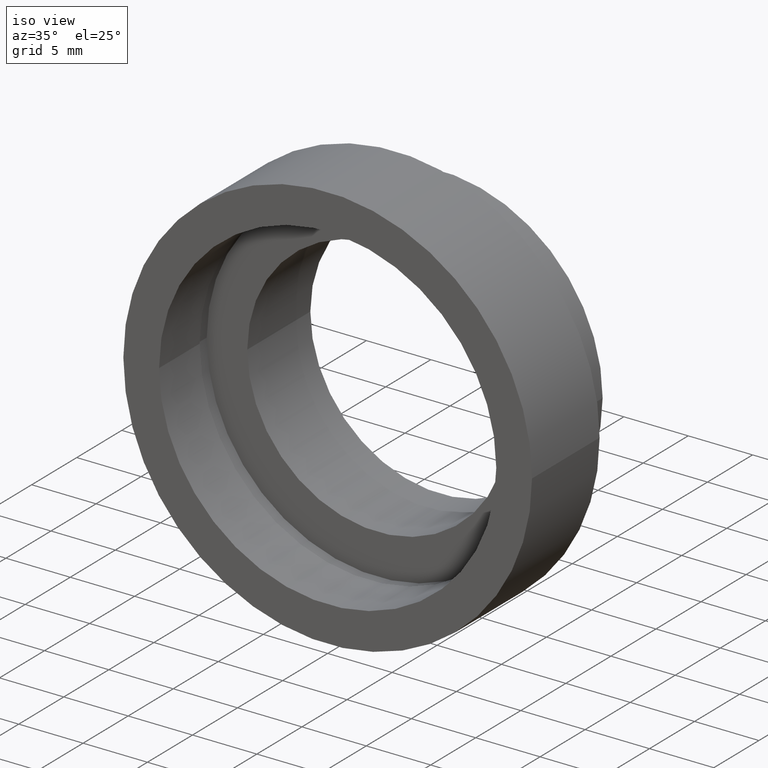
[diagram: clean part render]
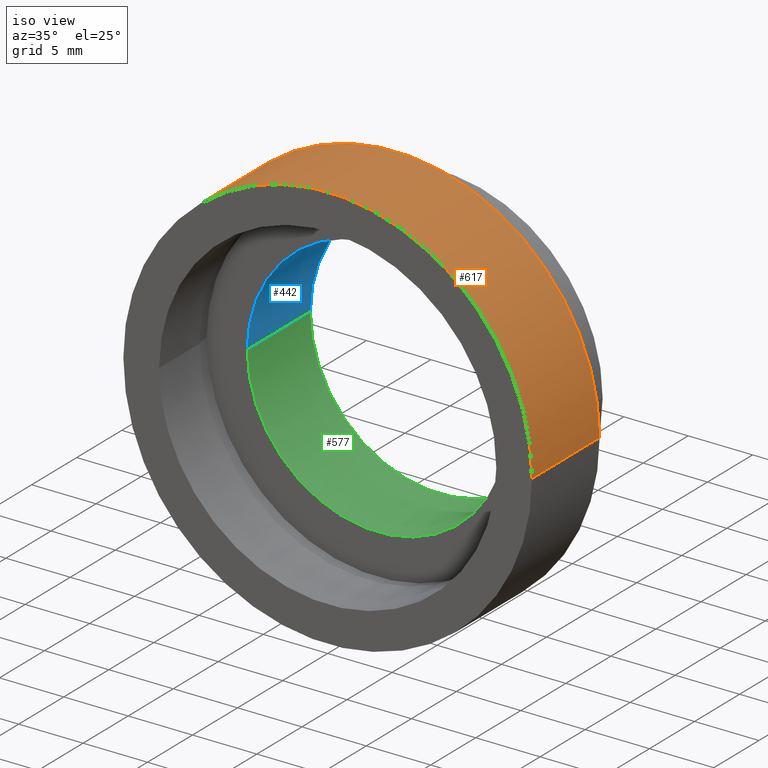
[diagram: same view with three faces highlighted in distinct colors, each labeled with its STEP entity id]
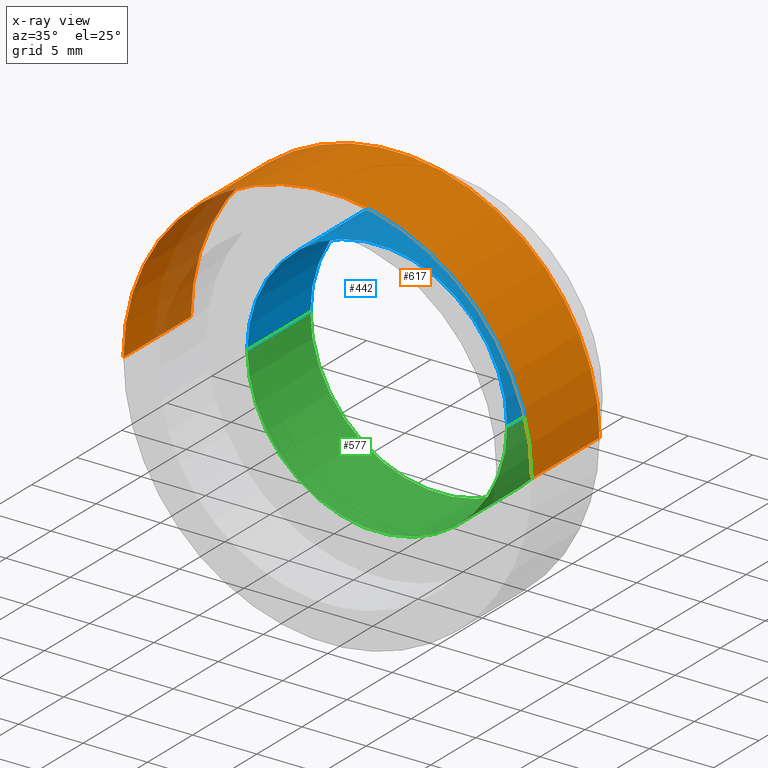
[diagram: x-ray of the same camera — body ghosted, the three highlighted faces saturated]
A machine part, iso view with three faces highlighted in distinct colors.
The next image is the same camera in x-ray (body ghosted, the three faces saturated) — at least one of them is partly hidden behind the body in this view.
Their STEP definitions:

[orange] entity #617 — the highlighted cylindrical surface (partial cylindrical patch) has radius 15.875 mm, axis along (-0, 1, -0).
#7 = CARTESIAN_POINT ( 'NONE',  ( 1.149455719078122700E-015, 7.499999999999998200, 0.0000000000000000000 ) ) ;
#51 = EDGE_CURVE ( 'NONE', #460, #482, #592, .T. ) ;
#57 = AXIS2_PLACEMENT_3D ( 'NONE', #201, #495, #390 ) ;
#108 = CARTESIAN_POINT ( 'NONE',  ( 15.87500000000000000, -1.525320158307194900E-015, 1.944126793646423200E-015 ) ) ;
#112 = VERTEX_POINT ( 'NONE', #343 ) ;
#113 = DIRECTION ( 'NONE',  ( -1.000000000000000000, -2.185478394931410600E-016, 0.0000000000000000000 ) ) ;
#150 = DIRECTION ( 'NONE',  ( -1.000000000000000000, -1.092739197465705300E-016, 0.0000000000000000000 ) ) ;
#163 = AXIS2_PLACEMENT_3D ( 'NONE', #508, #507, #113 ) ;
#181 = LINE ( 'NONE', #266, #359 ) ;
#201 = CARTESIAN_POINT ( 'NONE',  ( 2.067940818438636500E-015, -3.469446951953614200E-015, 0.0000000000000000000 ) ) ;
#266 = CARTESIAN_POINT ( 'NONE',  ( -15.87500000000000000, 16.88601823708207300, 0.0000000000000000000 ) ) ;
#276 = CYLINDRICAL_SURFACE ( 'NONE', #163, 15.87500000000000000 ) ;
#290 = ORIENTED_EDGE ( 'NONE', *, *, #470, .F. ) ;
#313 = CARTESIAN_POINT ( 'NONE',  ( -15.87500000000000000, 7.499999999999996400, 0.0000000000000000000 ) ) ;
#343 = CARTESIAN_POINT ( 'NONE',  ( -15.87499999999999300, -5.413573745600033100E-015, 0.0000000000000000000 ) ) ;
#347 = EDGE_CURVE ( 'NONE', #537, #482, #524, .T. ) ;
#357 = DIRECTION ( 'NONE',  ( -1.224646799147351000E-016, 1.000000000000000000, -0.0000000000000000000 ) ) ;
#359 = VECTOR ( 'NONE', #357, 1000.000000000000000 ) ;
#367 = EDGE_LOOP ( 'NONE', ( #612, #528, #595, #290 ) ) ;
#377 = EDGE_CURVE ( 'NONE', #112, #460, #561, .T. ) ;
#390 = DIRECTION ( 'NONE',  ( -1.000000000000000000, -1.224646799147350700E-016, 0.0000000000000000000 ) ) ;
#433 = CARTESIAN_POINT ( 'NONE',  ( 15.87500000000000000, 16.88601823708208000, 1.944126793646423200E-015 ) ) ;
#460 = VERTEX_POINT ( 'NONE', #108 ) ;
#470 = EDGE_CURVE ( 'NONE', #112, #537, #181, .T. ) ;
#482 = VERTEX_POINT ( 'NONE', #594 ) ;
#488 = DIRECTION ( 'NONE',  ( -1.224646799147351000E-016, 1.000000000000000000, -0.0000000000000000000 ) ) ;
#495 = DIRECTION ( 'NONE',  ( -1.224646799147351000E-016, 1.000000000000000000, -0.0000000000000000000 ) ) ;
#507 = DIRECTION ( 'NONE',  ( -1.224646799147351000E-016, 1.000000000000000000, -0.0000000000000000000 ) ) ;
#508 = CARTESIAN_POINT ( 'NONE',  ( 0.0000000000000000000, 16.88601823708207700, 0.0000000000000000000 ) ) ;
#519 = DIRECTION ( 'NONE',  ( -1.224646799147351000E-016, 1.000000000000000000, -0.0000000000000000000 ) ) ;
#524 = CIRCLE ( 'NONE', #622, 15.87500000000000000 ) ;
#528 = ORIENTED_EDGE ( 'NONE', *, *, #51, .T. ) ;
#537 = VERTEX_POINT ( 'NONE', #313 ) ;
#559 = FACE_OUTER_BOUND ( 'NONE', #367, .T. ) ;
#561 = CIRCLE ( 'NONE', #57, 15.87499999999999600 ) ;
#584 = VECTOR ( 'NONE', #519, 1000.000000000000000 ) ;
#592 = LINE ( 'NONE', #433, #584 ) ;
#594 = CARTESIAN_POINT ( 'NONE',  ( 15.87500000000000000, 7.500000000000000000, 1.944126793646423200E-015 ) ) ;
#595 = ORIENTED_EDGE ( 'NONE', *, *, #347, .F. ) ;
#612 = ORIENTED_EDGE ( 'NONE', *, *, #377, .T. ) ;
#617 = ADVANCED_FACE ( 'NONE', ( #559 ), #276, .T. ) ;
#622 = AXIS2_PLACEMENT_3D ( 'NONE', #7, #488, #150 ) ;

[blue] entity #442 — the highlighted cylindrical surface (partial cylindrical patch) has radius 10.1 mm, axis along (-0, 1, -0).
#11 = DIRECTION ( 'NONE',  ( -1.224646799147351000E-016, 1.000000000000000000, -0.0000000000000000000 ) ) ;
#19 = VERTEX_POINT ( 'NONE', #332 ) ;
#36 = CARTESIAN_POINT ( 'NONE',  ( 1.394385078907593200E-015, 5.499999999999996400, 0.0000000000000000000 ) ) ;
#50 = AXIS2_PLACEMENT_3D ( 'NONE', #550, #264, #406 ) ;
#52 = DIRECTION ( 'NONE',  ( -1.000000000000000000, -1.717547996016640700E-016, 0.0000000000000000000 ) ) ;
#58 = CARTESIAN_POINT ( 'NONE',  ( 5.371323195044473300E-016, 12.49999999999999600, 0.0000000000000000000 ) ) ;
#64 = EDGE_CURVE ( 'NONE', #512, #19, #69, .T. ) ;
#69 = CIRCLE ( 'NONE', #82, 10.10000000000000000 ) ;
#82 = AXIS2_PLACEMENT_3D ( 'NONE', #36, #288, #384 ) ;
#90 = CARTESIAN_POINT ( 'NONE',  ( -10.10000000000000000, 16.88601823708207700, 0.0000000000000000000 ) ) ;
#95 = LINE ( 'NONE', #90, #101 ) ;
#96 = CARTESIAN_POINT ( 'NONE',  ( -10.10000000000000000, 12.49999999999999500, 0.0000000000000000000 ) ) ;
#101 = VECTOR ( 'NONE', #250, 1000.000000000000000 ) ;
#152 = EDGE_CURVE ( 'NONE', #512, #183, #95, .T. ) ;
#161 = VERTEX_POINT ( 'NONE', #578 ) ;
#183 = VERTEX_POINT ( 'NONE', #96 ) ;
#243 = CIRCLE ( 'NONE', #362, 10.10000000000000000 ) ;
#250 = DIRECTION ( 'NONE',  ( -1.224646799147351000E-016, 1.000000000000000000, -0.0000000000000000000 ) ) ;
#260 = DIRECTION ( 'NONE',  ( -1.224646799147351000E-016, 1.000000000000000000, -0.0000000000000000000 ) ) ;
#264 = DIRECTION ( 'NONE',  ( -1.224646799147351000E-016, 1.000000000000000000, -0.0000000000000000000 ) ) ;
#278 = EDGE_CURVE ( 'NONE', #19, #161, #407, .T. ) ;
#279 = VECTOR ( 'NONE', #11, 1000.000000000000000 ) ;
#286 = ORIENTED_EDGE ( 'NONE', *, *, #421, .T. ) ;
#288 = DIRECTION ( 'NONE',  ( -1.224646799147351000E-016, 1.000000000000000000, -0.0000000000000000000 ) ) ;
#300 = CARTESIAN_POINT ( 'NONE',  ( 10.10000000000000000, 16.88601823708207700, 1.236893267138826600E-015 ) ) ;
#305 = CYLINDRICAL_SURFACE ( 'NONE', #50, 10.10000000000000000 ) ;
#332 = CARTESIAN_POINT ( 'NONE',  ( 10.10000000000000100, 5.499999999999997300, 1.236893267138826600E-015 ) ) ;
#362 = AXIS2_PLACEMENT_3D ( 'NONE', #58, #260, #52 ) ;
#383 = ORIENTED_EDGE ( 'NONE', *, *, #64, .F. ) ;
#384 = DIRECTION ( 'NONE',  ( -1.000000000000000000, -8.587739980083203700E-017, 0.0000000000000000000 ) ) ;
#406 = DIRECTION ( 'NONE',  ( -1.000000000000000000, 0.0000000000000000000, 0.0000000000000000000 ) ) ;
#407 = LINE ( 'NONE', #300, #279 ) ;
#409 = EDGE_LOOP ( 'NONE', ( #437, #383, #564, #286 ) ) ;
#421 = EDGE_CURVE ( 'NONE', #183, #161, #243, .T. ) ;
#437 = ORIENTED_EDGE ( 'NONE', *, *, #278, .F. ) ;
#442 = ADVANCED_FACE ( 'NONE', ( #554 ), #305, .F. ) ;
#512 = VERTEX_POINT ( 'NONE', #543 ) ;
#543 = CARTESIAN_POINT ( 'NONE',  ( -10.09999999999999800, 5.499999999999995600, 0.0000000000000000000 ) ) ;
#550 = CARTESIAN_POINT ( 'NONE',  ( 0.0000000000000000000, 16.88601823708207700, 0.0000000000000000000 ) ) ;
#554 = FACE_OUTER_BOUND ( 'NONE', #409, .T. ) ;
#564 = ORIENTED_EDGE ( 'NONE', *, *, #152, .T. ) ;
#578 = CARTESIAN_POINT ( 'NONE',  ( 10.10000000000000000, 12.49999999999999800, 1.236893267138826600E-015 ) ) ;

[green] entity #577 — the highlighted cylindrical surface (partial cylindrical patch) has radius 10.1 mm, axis along (-0, 1, -0).
#6 = DIRECTION ( 'NONE',  ( -1.000000000000000000, -8.587739980083203700E-017, 0.0000000000000000000 ) ) ;
#11 = DIRECTION ( 'NONE',  ( -1.224646799147351000E-016, 1.000000000000000000, -0.0000000000000000000 ) ) ;
#19 = VERTEX_POINT ( 'NONE', #332 ) ;
#20 = AXIS2_PLACEMENT_3D ( 'NONE', #168, #223, #171 ) ;
#31 = FACE_OUTER_BOUND ( 'NONE', #70, .T. ) ;
#70 = EDGE_LOOP ( 'NONE', ( #361, #297, #316, #103 ) ) ;
#90 = CARTESIAN_POINT ( 'NONE',  ( -10.10000000000000000, 16.88601823708207700, 0.0000000000000000000 ) ) ;
#95 = LINE ( 'NONE', #90, #101 ) ;
#96 = CARTESIAN_POINT ( 'NONE',  ( -10.10000000000000000, 12.49999999999999500, 0.0000000000000000000 ) ) ;
#101 = VECTOR ( 'NONE', #250, 1000.000000000000000 ) ;
#103 = ORIENTED_EDGE ( 'NONE', *, *, #152, .F. ) ;
#114 = DIRECTION ( 'NONE',  ( -1.224646799147351000E-016, 1.000000000000000000, -0.0000000000000000000 ) ) ;
#147 = DIRECTION ( 'NONE',  ( -1.224646799147351000E-016, 1.000000000000000000, -0.0000000000000000000 ) ) ;
#152 = EDGE_CURVE ( 'NONE', #512, #183, #95, .T. ) ;
#161 = VERTEX_POINT ( 'NONE', #578 ) ;
#168 = CARTESIAN_POINT ( 'NONE',  ( 0.0000000000000000000, 16.88601823708207700, 0.0000000000000000000 ) ) ;
#171 = DIRECTION ( 'NONE',  ( -1.000000000000000000, 0.0000000000000000000, 0.0000000000000000000 ) ) ;
#183 = VERTEX_POINT ( 'NONE', #96 ) ;
#216 = CARTESIAN_POINT ( 'NONE',  ( 5.371323195044473300E-016, 12.49999999999999600, 0.0000000000000000000 ) ) ;
#220 = DIRECTION ( 'NONE',  ( -1.000000000000000000, -1.717547996016640700E-016, 0.0000000000000000000 ) ) ;
#223 = DIRECTION ( 'NONE',  ( -1.224646799147351000E-016, 1.000000000000000000, -0.0000000000000000000 ) ) ;
#240 = EDGE_CURVE ( 'NONE', #19, #512, #330, .T. ) ;
#250 = DIRECTION ( 'NONE',  ( -1.224646799147351000E-016, 1.000000000000000000, -0.0000000000000000000 ) ) ;
#278 = EDGE_CURVE ( 'NONE', #19, #161, #407, .T. ) ;
#279 = VECTOR ( 'NONE', #11, 1000.000000000000000 ) ;
#296 = CARTESIAN_POINT ( 'NONE',  ( 1.394385078907593200E-015, 5.499999999999996400, 0.0000000000000000000 ) ) ;
#297 = ORIENTED_EDGE ( 'NONE', *, *, #278, .T. ) ;
#300 = CARTESIAN_POINT ( 'NONE',  ( 10.10000000000000000, 16.88601823708207700, 1.236893267138826600E-015 ) ) ;
#316 = ORIENTED_EDGE ( 'NONE', *, *, #522, .T. ) ;
#330 = CIRCLE ( 'NONE', #614, 10.10000000000000000 ) ;
#332 = CARTESIAN_POINT ( 'NONE',  ( 10.10000000000000100, 5.499999999999997300, 1.236893267138826600E-015 ) ) ;
#334 = CIRCLE ( 'NONE', #553, 10.10000000000000000 ) ;
#361 = ORIENTED_EDGE ( 'NONE', *, *, #240, .F. ) ;
#407 = LINE ( 'NONE', #300, #279 ) ;
#414 = CYLINDRICAL_SURFACE ( 'NONE', #20, 10.10000000000000000 ) ;
#512 = VERTEX_POINT ( 'NONE', #543 ) ;
#522 = EDGE_CURVE ( 'NONE', #161, #183, #334, .T. ) ;
#543 = CARTESIAN_POINT ( 'NONE',  ( -10.09999999999999800, 5.499999999999995600, 0.0000000000000000000 ) ) ;
#553 = AXIS2_PLACEMENT_3D ( 'NONE', #216, #114, #220 ) ;
#577 = ADVANCED_FACE ( 'NONE', ( #31 ), #414, .F. ) ;
#578 = CARTESIAN_POINT ( 'NONE',  ( 10.10000000000000000, 12.49999999999999800, 1.236893267138826600E-015 ) ) ;
#614 = AXIS2_PLACEMENT_3D ( 'NONE', #296, #147, #6 ) ;